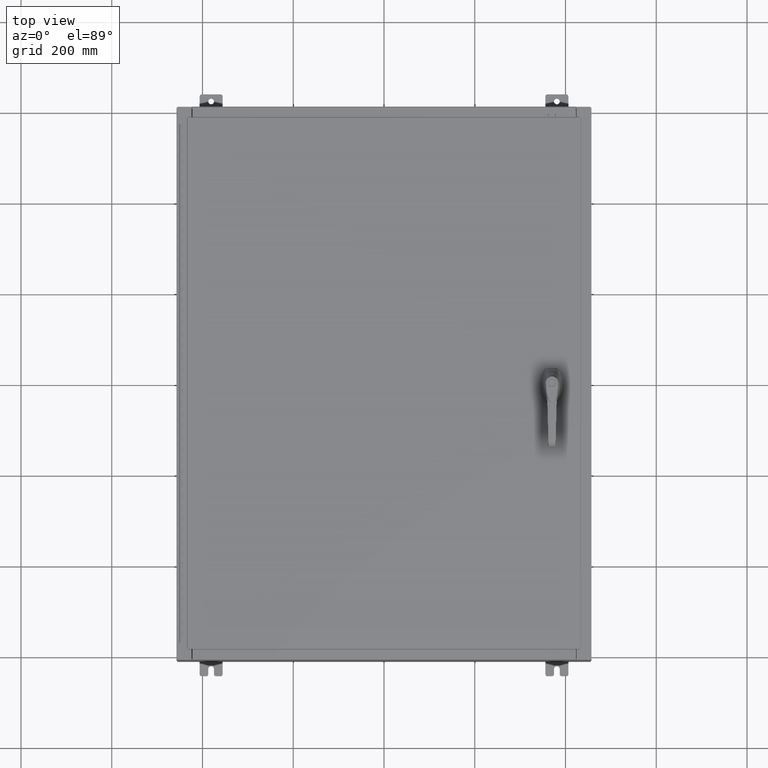
[diagram: clean part render]
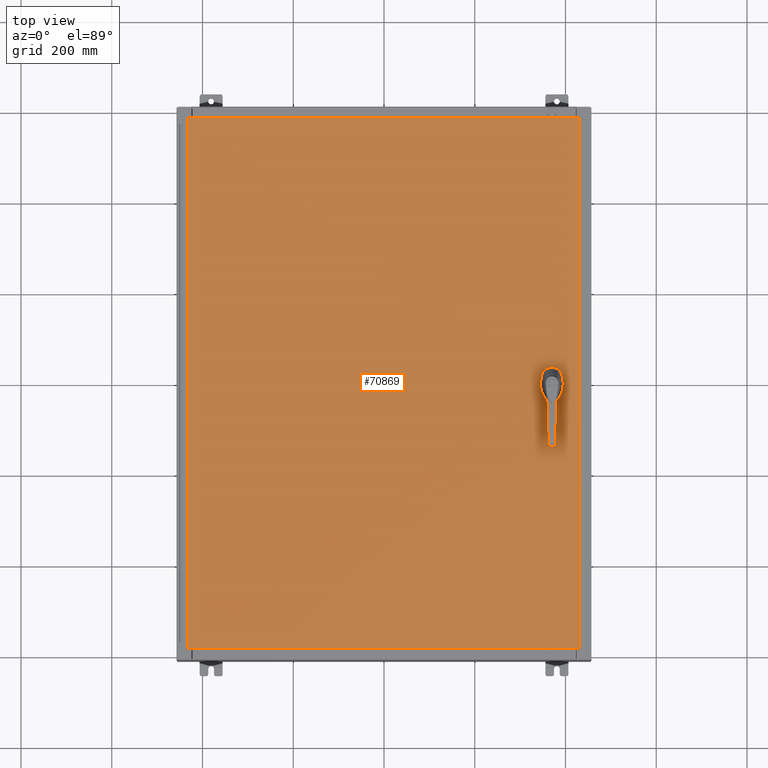
[diagram: same view with one face highlighted and labeled with its STEP entity id]
A machine part, top view. The second image highlights one B-rep face of the part: STEP entity #70869.
In plain terms, the highlighted planar face has unit normal (0, 0, -1).
Its self-contained STEP definition (entity closure, byte-faithful):
#3418 = LINE ( 'NONE', #92863, #55304 ) ;
#4499 = AXIS2_PLACEMENT_3D ( 'NONE', #82410, #20292, #92815 ) ;
#6772 = CARTESIAN_POINT ( 'NONE',  ( 14.57799999999999900, 0.0000000000000000000, 0.0000000000000000000 ) ) ;
#7111 = VERTEX_POINT ( 'NONE', #67458 ) ;
#7672 = ORIENTED_EDGE ( 'NONE', *, *, #88816, .F. ) ;
#7989 = LINE ( 'NONE', #17776, #111764 ) ;
#9975 = CARTESIAN_POINT ( 'NONE',  ( 16.99029999999999800, -23.00630000000000300, -2.048885995248197400E-016 ) ) ;
#10377 = PLANE ( 'NONE',  #102816 ) ;
#12058 = CARTESIAN_POINT ( 'NONE',  ( 14.37777262924369000, -0.4029999999999252000, 0.0000000000000000000 ) ) ;
#12720 = CARTESIAN_POINT ( 'NONE',  ( 14.57799999999999900, 0.0000000000000000000, 0.0000000000000000000 ) ) ;
#15641 = VERTEX_POINT ( 'NONE', #125773 ) ;
#16621 = VECTOR ( 'NONE', #33358, 39.37007874015748100 ) ;
#17201 = DIRECTION ( 'NONE',  ( 1.000000000000000000, 0.0000000000000000000, 0.0000000000000000000 ) ) ;
#17639 = CARTESIAN_POINT ( 'NONE',  ( 14.57799999999999900, -1.338000000000000100, 0.0000000000000000000 ) ) ;
#17776 = CARTESIAN_POINT ( 'NONE',  ( 14.98099999999992700, 8.175868191945441800E-014, 0.0000000000000000000 ) ) ;
#20292 = DIRECTION ( 'NONE',  ( -0.0000000000000000000, 0.0000000000000000000, 1.000000000000000000 ) ) ;
#20800 = DIRECTION ( 'NONE',  ( -1.000000000000000000, 0.0000000000000000000, -0.0000000000000000000 ) ) ;
#23159 = DIRECTION ( 'NONE',  ( 1.000000000000000000, 0.0000000000000000000, 0.0000000000000000000 ) ) ;
#24060 = AXIS2_PLACEMENT_3D ( 'NONE', #88115, #25968, #98488 ) ;
#25065 = DIRECTION ( 'NONE',  ( 0.0000000000000000000, 1.000000000000000000, 0.0000000000000000000 ) ) ;
#25373 = EDGE_CURVE ( 'NONE', #133430, #45408, #116619, .T. ) ;
#25968 = DIRECTION ( 'NONE',  ( -0.0000000000000000000, 0.0000000000000000000, 1.000000000000000000 ) ) ;
#25993 = LINE ( 'NONE', #100822, #81249 ) ;
#28018 = DIRECTION ( 'NONE',  ( 1.000000000000000000, 0.0000000000000000000, 0.0000000000000000000 ) ) ;
#28070 = CARTESIAN_POINT ( 'NONE',  ( 14.98099999999992700, 0.2002273707563075900, 0.0000000000000000000 ) ) ;
#28574 = ORIENTED_EDGE ( 'NONE', *, *, #63695, .F. ) ;
#29278 = EDGE_CURVE ( 'NONE', #15641, #112510, #44165, .T. ) ;
#32453 = VECTOR ( 'NONE', #43124, 39.37007874015748100 ) ;
#32655 = CARTESIAN_POINT ( 'NONE',  ( -16.99029999999998400, 23.00630000000001000, -1.297627796990525000E-015 ) ) ;
#33358 = DIRECTION ( 'NONE',  ( -1.000000000000000000, -0.0000000000000000000, -0.0000000000000000000 ) ) ;
#33494 = CARTESIAN_POINT ( 'NONE',  ( 14.17500000000007400, 0.2002273707563079800, 0.0000000000000000000 ) ) ;
#35114 = VERTEX_POINT ( 'NONE', #89686 ) ;
#35675 = LINE ( 'NONE', #32655, #32453 ) ;
#37150 = CIRCLE ( 'NONE', #64465, 0.4499999999999168000 ) ;
#38537 = DIRECTION ( 'NONE',  ( 5.457491617345625800E-015, -1.000000000000000000, 0.0000000000000000000 ) ) ;
#39183 = ORIENTED_EDGE ( 'NONE', *, *, #71058, .F. ) ;
#41879 = ORIENTED_EDGE ( 'NONE', *, *, #118402, .T. ) ;
#42277 = FACE_BOUND ( 'NONE', #105332, .T. ) ;
#43124 = DIRECTION ( 'NONE',  ( 0.0000000000000000000, -1.000000000000000000, 0.0000000000000000000 ) ) ;
#44165 = LINE ( 'NONE', #95511, #16621 ) ;
#45154 = VECTOR ( 'NONE', #83196, 39.37007874015748100 ) ;
#45408 = VERTEX_POINT ( 'NONE', #33494 ) ;
#45425 = CARTESIAN_POINT ( 'NONE',  ( 14.77822737075630900, 0.4029999999999252000, 0.0000000000000000000 ) ) ;
#48064 = DIRECTION ( 'NONE',  ( -0.0000000000000000000, 0.0000000000000000000, 1.000000000000000000 ) ) ;
#48706 = EDGE_CURVE ( 'NONE', #84735, #70852, #108443, .T. ) ;
#51876 = CARTESIAN_POINT ( 'NONE',  ( 14.17500000000007400, 0.0000000000000000000, 0.0000000000000000000 ) ) ;
#55304 = VECTOR ( 'NONE', #103196, 39.37007874015748100 ) ;
#55484 = EDGE_CURVE ( 'NONE', #67969, #122498, #7989, .T. ) ;
#55763 = CARTESIAN_POINT ( 'NONE',  ( 0.0000000000000000000, -0.4029999999999252000, 0.0000000000000000000 ) ) ;
#56413 = VERTEX_POINT ( 'NONE', #105878 ) ;
#60241 = ORIENTED_EDGE ( 'NONE', *, *, #79584, .F. ) ;
#61462 = CIRCLE ( 'NONE', #73863, 0.1715000000000011500 ) ;
#62030 = CARTESIAN_POINT ( 'NONE',  ( 0.0000000000000000000, 0.0000000000000000000, 0.0000000000000000000 ) ) ;
#62357 = ORIENTED_EDGE ( 'NONE', *, *, #25373, .F. ) ;
#62857 = ORIENTED_EDGE ( 'NONE', *, *, #55484, .T. ) ;
#63695 = EDGE_CURVE ( 'NONE', #67969, #104267, #116208, .T. ) ;
#63745 = ORIENTED_EDGE ( 'NONE', *, *, #83563, .T. ) ;
#64465 = AXIS2_PLACEMENT_3D ( 'NONE', #110135, #48064, #120523 ) ;
#66607 = FACE_OUTER_BOUND ( 'NONE', #109759, .T. ) ;
#67458 = CARTESIAN_POINT ( 'NONE',  ( -16.99029999999999800, -23.00630000000000300, 1.946441695485787500E-015 ) ) ;
#67969 = VERTEX_POINT ( 'NONE', #28070 ) ;
#69496 = LINE ( 'NONE', #51876, #45154 ) ;
#70852 = VERTEX_POINT ( 'NONE', #124074 ) ;
#70869 = ADVANCED_FACE ( 'NONE', ( #94223, #66607, #42277 ), #10377, .F. ) ;
#71058 = EDGE_CURVE ( 'NONE', #104267, #133430, #25993, .T. ) ;
#71148 = AXIS2_PLACEMENT_3D ( 'NONE', #12720, #85273, #23159 ) ;
#73863 = AXIS2_PLACEMENT_3D ( 'NONE', #17639, #90169, #28018 ) ;
#78456 = ORIENTED_EDGE ( 'NONE', *, *, #134030, .T. ) ;
#79342 = DIRECTION ( 'NONE',  ( -0.0000000000000000000, 0.0000000000000000000, 1.000000000000000000 ) ) ;
#79548 = CIRCLE ( 'NONE', #4499, 0.1715000000000011500 ) ;
#79584 = EDGE_CURVE ( 'NONE', #114688, #56413, #61462, .T. ) ;
#81249 = VECTOR ( 'NONE', #110817, 39.37007874015748100 ) ;
#82410 = CARTESIAN_POINT ( 'NONE',  ( 14.57799999999999900, -1.338000000000000100, 0.0000000000000000000 ) ) ;
#82911 = DIRECTION ( 'NONE',  ( 0.0000000000000000000, 0.0000000000000000000, -1.000000000000000000 ) ) ;
#83196 = DIRECTION ( 'NONE',  ( 0.0000000000000000000, -1.000000000000000000, 0.0000000000000000000 ) ) ;
#83563 = EDGE_CURVE ( 'NONE', #131466, #15641, #112696, .T. ) ;
#84735 = VERTEX_POINT ( 'NONE', #12058 ) ;
#85162 = VECTOR ( 'NONE', #25065, 39.37007874015748100 ) ;
#85273 = DIRECTION ( 'NONE',  ( -0.0000000000000000000, 0.0000000000000000000, 1.000000000000000000 ) ) ;
#87203 = CARTESIAN_POINT ( 'NONE',  ( 16.99029999999999800, -23.00630000000000300, -2.048885995248197400E-016 ) ) ;
#87264 = CARTESIAN_POINT ( 'NONE',  ( 14.40649999999999800, -1.338000000000000100, 0.0000000000000000000 ) ) ;
#88115 = CARTESIAN_POINT ( 'NONE',  ( 14.57799999999999900, 0.0000000000000000000, 0.0000000000000000000 ) ) ;
#88816 = EDGE_CURVE ( 'NONE', #45408, #35114, #69496, .T. ) ;
#89686 = CARTESIAN_POINT ( 'NONE',  ( 14.17500000000007400, -0.2002273707563079800, 0.0000000000000000000 ) ) ;
#90169 = DIRECTION ( 'NONE',  ( -0.0000000000000000000, 0.0000000000000000000, 1.000000000000000000 ) ) ;
#92815 = DIRECTION ( 'NONE',  ( 1.000000000000000000, 0.0000000000000000000, 0.0000000000000000000 ) ) ;
#92863 = CARTESIAN_POINT ( 'NONE',  ( -16.99029999999999800, -23.00630000000000300, 1.946441695485787500E-015 ) ) ;
#94223 = FACE_BOUND ( 'NONE', #104491, .T. ) ;
#95511 = CARTESIAN_POINT ( 'NONE',  ( 16.99029999999999800, 23.00630000000001000, 1.946441695485787500E-015 ) ) ;
#97906 = DIRECTION ( 'NONE',  ( 1.000000000000000000, 0.0000000000000000000, 0.0000000000000000000 ) ) ;
#98488 = DIRECTION ( 'NONE',  ( 1.000000000000000000, 0.0000000000000000000, 0.0000000000000000000 ) ) ;
#100822 = CARTESIAN_POINT ( 'NONE',  ( 0.0000000000000000000, 0.4029999999999252000, 0.0000000000000000000 ) ) ;
#101953 = VECTOR ( 'NONE', #97906, 39.37007874015748100 ) ;
#102816 = AXIS2_PLACEMENT_3D ( 'NONE', #62030, #82911, #20800 ) ;
#103196 = DIRECTION ( 'NONE',  ( 1.000000000000000000, -0.0000000000000000000, -0.0000000000000000000 ) ) ;
#104267 = VERTEX_POINT ( 'NONE', #45425 ) ;
#104491 = EDGE_LOOP ( 'NONE', ( #131896, #60241 ) ) ;
#105332 = EDGE_LOOP ( 'NONE', ( #62857, #133603, #131998, #121393, #7672, #62357, #39183, #28574 ) ) ;
#105878 = CARTESIAN_POINT ( 'NONE',  ( 14.74950000000000100, -1.338000000000000100, 0.0000000000000000000 ) ) ;
#107066 = CARTESIAN_POINT ( 'NONE',  ( 14.37777262924369000, 0.4029999999999252000, 0.0000000000000000000 ) ) ;
#108443 = LINE ( 'NONE', #55763, #101953 ) ;
#109759 = EDGE_LOOP ( 'NONE', ( #78456, #63745, #121166, #41879 ) ) ;
#110011 = CARTESIAN_POINT ( 'NONE',  ( -16.99029999999998400, 23.00630000000001000, -1.297627796990525000E-015 ) ) ;
#110047 = EDGE_CURVE ( 'NONE', #35114, #84735, #110710, .T. ) ;
#110135 = CARTESIAN_POINT ( 'NONE',  ( 14.57799999999999900, 0.0000000000000000000, 0.0000000000000000000 ) ) ;
#110710 = CIRCLE ( 'NONE', #133772, 0.4499999999999168000 ) ;
#110817 = DIRECTION ( 'NONE',  ( -1.000000000000000000, 0.0000000000000000000, 0.0000000000000000000 ) ) ;
#111764 = VECTOR ( 'NONE', #38537, 39.37007874015748100 ) ;
#112510 = VERTEX_POINT ( 'NONE', #110011 ) ;
#112563 = EDGE_CURVE ( 'NONE', #56413, #114688, #79548, .T. ) ;
#112696 = LINE ( 'NONE', #87203, #85162 ) ;
#113269 = EDGE_CURVE ( 'NONE', #70852, #122498, #37150, .T. ) ;
#114688 = VERTEX_POINT ( 'NONE', #87264 ) ;
#116208 = CIRCLE ( 'NONE', #24060, 0.4499999999999168000 ) ;
#116619 = CIRCLE ( 'NONE', #71148, 0.4499999999999168000 ) ;
#118402 = EDGE_CURVE ( 'NONE', #112510, #7111, #35675, .T. ) ;
#120523 = DIRECTION ( 'NONE',  ( 1.000000000000000000, 0.0000000000000000000, 0.0000000000000000000 ) ) ;
#121166 = ORIENTED_EDGE ( 'NONE', *, *, #29278, .T. ) ;
#121393 = ORIENTED_EDGE ( 'NONE', *, *, #110047, .F. ) ;
#122498 = VERTEX_POINT ( 'NONE', #127005 ) ;
#124074 = CARTESIAN_POINT ( 'NONE',  ( 14.77822737075630900, -0.4029999999999252000, 0.0000000000000000000 ) ) ;
#125773 = CARTESIAN_POINT ( 'NONE',  ( 16.99029999999999800, 23.00630000000001000, 1.946441695485787500E-015 ) ) ;
#127005 = CARTESIAN_POINT ( 'NONE',  ( 14.98099999999992900, -0.2002273707563079800, 0.0000000000000000000 ) ) ;
#131466 = VERTEX_POINT ( 'NONE', #9975 ) ;
#131896 = ORIENTED_EDGE ( 'NONE', *, *, #112563, .F. ) ;
#131998 = ORIENTED_EDGE ( 'NONE', *, *, #48706, .F. ) ;
#133430 = VERTEX_POINT ( 'NONE', #107066 ) ;
#133603 = ORIENTED_EDGE ( 'NONE', *, *, #113269, .F. ) ;
#133772 = AXIS2_PLACEMENT_3D ( 'NONE', #6772, #79342, #17201 ) ;
#134030 = EDGE_CURVE ( 'NONE', #7111, #131466, #3418, .T. ) ;